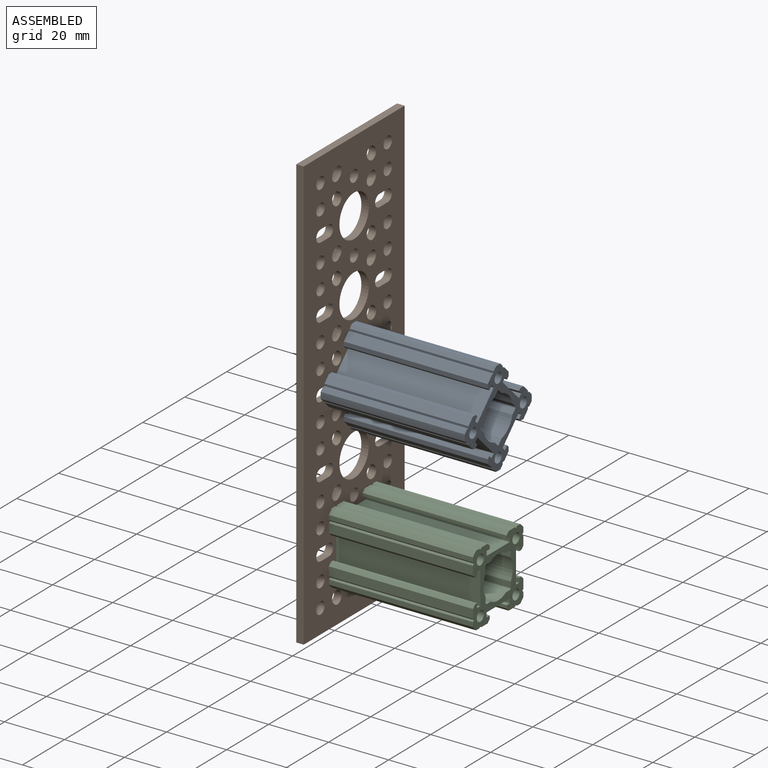
[diagram: assembled view]
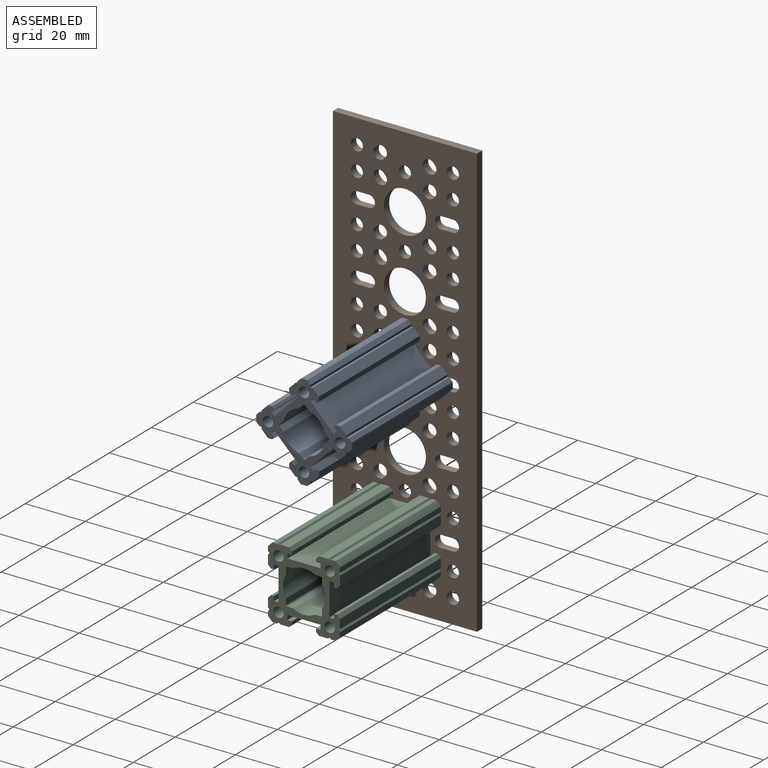
[diagram: assembled view, second angle]
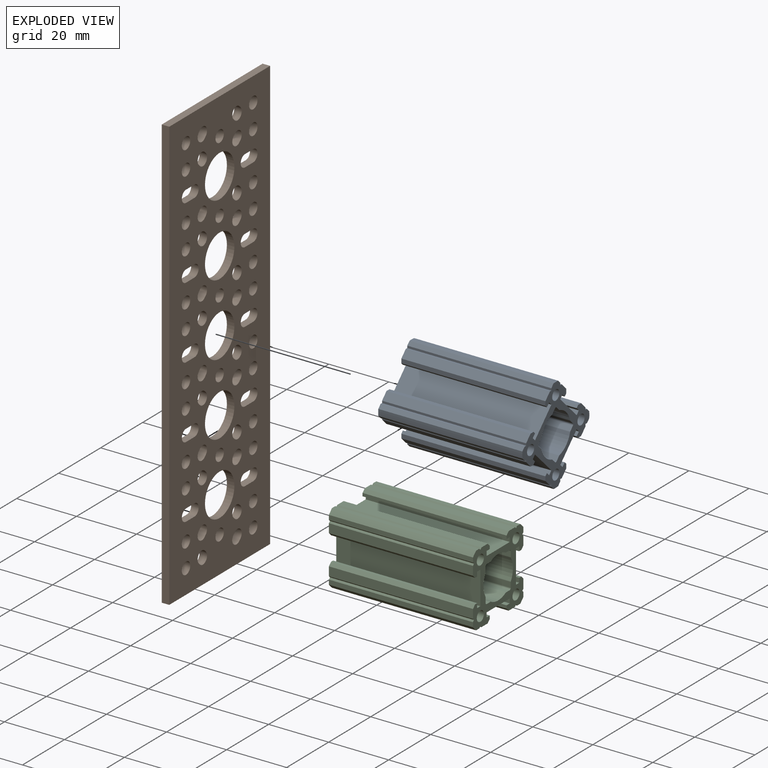
[diagram: exploded view]
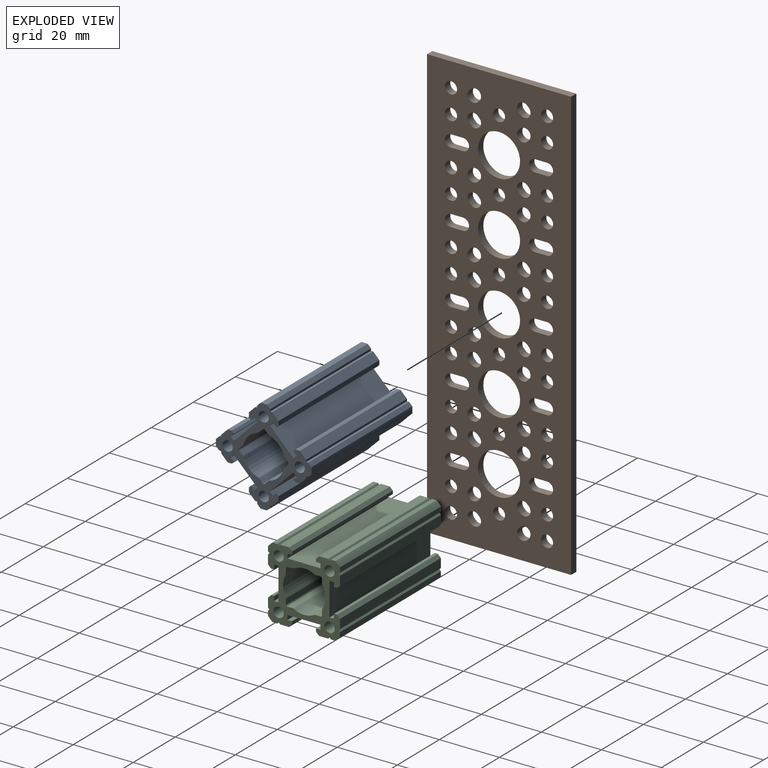
[diagram: exploded view, second angle]
ASSEMBLY  parts=3 mates=3
PART A: 102 faces, bbox 48x24x24 mm
  f0: plane 48x1.5mm, normal (0,0,1), area 72mm2, adj f1,f99,f100,f101
  f1: plane 48x1.5mm, normal (0,1,0), area 72mm2, adj f0,f2,f100,f101
  f2: plane 48x11mm, normal (0,0,-1), area 528mm2, adj f1,f3,f100,f101
  f3: plane 48x1.5mm, normal (0,-1,0), area 72mm2, adj f2,f4,f100,f101
  f4: plane 48x1.5mm, normal (0,0,1), area 72mm2, adj f3,f5,f100,f101
  f5: plane 48x1mm, normal (0,-1,0), area 48mm2, adj f4,f6,f100,f101
  f6: plane 48x1mm, normal (0,-0.71,-0.71), area 67.9mm2, adj f5,f7,f100,f101
  f7: plane 48x2.99mm, normal (0,0,-1), area 143.3mm2, adj f6,f8,f100,f101
  f8: plane 48x0.5mm, normal (0,0.71,-0.71), area 33.9mm2, adj f7,f9,f100,f101
  f9: plane 48x0.5mm, normal (0,-0.71,-0.71), area 33.9mm2, adj f8,f10,f100,f101
  f10: plane 48x1.52mm, normal (0,0,-1), area 73.1mm2, adj f9,f11,f100,f101
  f11: cylinder r=15.95mm len=48mm, axis (-1,0,0), area 101.4mm2, adj f10,f12,f100,f101
  f12: plane 48x1.52mm, normal (0,1,0), area 73.1mm2, adj f11,f13,f100,f101
  f13: plane 48x0.5mm, normal (0,0.71,0.71), area 33.9mm2, adj f12,f14,f100,f101
  f14: plane 48x0.5mm, normal (0,0.71,-0.71), area 33.9mm2, adj f13,f15,f100,f101
  f15: plane 48x2.99mm, normal (0,1,0), area 143.3mm2, adj f14,f16,f100,f101
  f16: plane 48x1mm, normal (0,0.71,0.71), area 67.9mm2, adj f15,f17,f100,f101
  f17: plane 48x1mm, normal (0,0,1), area 48mm2, adj f16,f18,f100,f101
  f18: plane 48x1.5mm, normal (0,-1,0), area 72mm2, adj f17,f19,f100,f101
  f19: plane 48x1.5mm, normal (0,0,1), area 72mm2, adj f18,f20,f100,f101
  f20: plane 48x11mm, normal (0,1,0), area 528mm2, adj f19,f21,f100,f101
  f21: plane 48x1.5mm, normal (0,0,-1), area 72mm2, adj f20,f22,f100,f101
  f22: plane 48x1.5mm, normal (0,-1,0), area 72mm2, adj f21,f23,f100,f101
  f23: plane 48x1mm, normal (0,0,-1), area 48mm2, adj f22,f24,f100,f101
  f24: plane 48x1mm, normal (0,0.71,-0.71), area 67.9mm2, adj f23,f25,f100,f101
  f25: plane 48x2.99mm, normal (0,1,0), area 143.3mm2, adj f24,f26,f100,f101
  f26: plane 48x0.5mm, normal (0,0.71,0.71), area 33.9mm2, adj f25,f27,f100,f101
  f27: plane 48x0.5mm, normal (0,0.71,-0.71), area 33.9mm2, adj f26,f28,f100,f101
  f28: plane 48x1.52mm, normal (0,1,0), area 73.1mm2, adj f27,f29,f100,f101
  f29: cylinder r=15.95mm len=48mm, axis (-1,0,0), area 101.4mm2, adj f28,f30,f100,f101
  f30: plane 48x1.52mm, normal (0,0,1), area 73.1mm2, adj f29,f31,f100,f101
  f31: plane 48x0.5mm, normal (0,-0.71,0.71), area 33.9mm2, adj f30,f32,f100,f101
  f32: plane 48x0.5mm, normal (0,0.71,0.71), area 33.9mm2, adj f31,f33,f100,f101
  f33: plane 48x2.99mm, normal (0,0,1), area 143.3mm2, adj f32,f34,f100,f101
  f34: plane 48x1mm, normal (0,-0.71,0.71), area 67.9mm2, adj f33,f35,f100,f101
  f35: plane 48x1mm, normal (0,-1,0), area 48mm2, adj f34,f36,f100,f101
  f36: plane 48x1.5mm, normal (0,0,-1), area 72mm2, adj f35,f37,f100,f101
  f37: plane 48x1.5mm, normal (0,-1,0), area 72mm2, adj f36,f38,f100,f101
  f38: plane 48x11mm, normal (0,0,1), area 528mm2, adj f37,f39,f100,f101
  f39: plane 48x1.5mm, normal (0,1,0), area 72mm2, adj f38,f40,f100,f101
  f40: plane 48x1.5mm, normal (0,0,-1), area 72mm2, adj f39,f41,f100,f101
  f41: plane 48x1mm, normal (0,1,0), area 48mm2, adj f40,f42,f100,f101
  f42: plane 48x1mm, normal (0,0.71,0.71), area 67.9mm2, adj f41,f43,f100,f101
  f43: plane 48x2.99mm, normal (0,0,1), area 143.3mm2, adj f42,f44,f100,f101
  f44: plane 48x0.5mm, normal (0,-0.71,0.71), area 33.9mm2, adj f43,f45,f100,f101
  f45: plane 48x0.5mm, normal (0,0.71,0.71), area 33.9mm2, adj f44,f46,f100,f101
  f46: plane 48x1.52mm, normal (0,0,1), area 73.1mm2, adj f45,f47,f100,f101
  f47: cylinder r=15.95mm len=48mm, axis (-1,0,0), area 101.4mm2, adj f46,f48,f100,f101
  f48: plane 48x1.52mm, normal (0,-1,0), area 73.1mm2, adj f47,f49,f100,f101
  f49: plane 48x0.5mm, normal (0,-0.71,-0.71), area 33.9mm2, adj f48,f50,f100,f101
  f50: plane 48x0.5mm, normal (0,-0.71,0.71), area 33.9mm2, adj f49,f51,f100,f101
  f51: plane 48x2.99mm, normal (0,-1,0), area 143.3mm2, adj f50,f52,f100,f101
  f52: plane 48x1mm, normal (0,-0.71,-0.71), area 67.9mm2, adj f51,f53,f100,f101
  f53: plane 48x1mm, normal (0,0,-1), area 48mm2, adj f52,f54,f100,f101
  f54: plane 48x1.5mm, normal (0,1,0), area 72mm2, adj f53,f55,f100,f101
  f55: plane 48x1.5mm, normal (0,0,-1), area 72mm2, adj f54,f56,f100,f101
  f56: plane 48x11mm, normal (0,-1,0), area 528mm2, adj f55,f57,f100,f101
  f57: plane 48x1.5mm, normal (0,0,1), area 72mm2, adj f56,f58,f100,f101
  f58: plane 48x1.5mm, normal (0,1,0), area 72mm2, adj f57,f59,f100,f101
  f59: plane 48x1mm, normal (0,0,1), area 48mm2, adj f58,f60,f100,f101
  f60: plane 48x1mm, normal (0,-0.71,0.71), area 67.9mm2, adj f59,f61,f100,f101
  f61: plane 48x2.99mm, normal (0,-1,0), area 143.3mm2, adj f60,f62,f100,f101
  f62: plane 48x0.5mm, normal (0,-0.71,-0.71), area 33.9mm2, adj f61,f63,f100,f101
  f63: plane 48x0.5mm, normal (0,-0.71,0.71), area 33.9mm2, adj f62,f64,f100,f101
  f64: plane 48x1.52mm, normal (0,-1,0), area 73.1mm2, adj f63,f65,f100,f101
  f65: cylinder r=15.95mm len=48mm, axis (-1,0,0), area 101.4mm2, adj f64,f66,f100,f101
  f66: plane 48x1.52mm, normal (0,0,-1), area 73.1mm2, adj f65,f67,f100,f101
  f67: plane 48x0.5mm, normal (0,0.71,-0.71), area 33.9mm2, adj f66,f68,f100,f101
  f68: plane 48x0.5mm, normal (0,-0.71,-0.71), area 33.9mm2, adj f67,f69,f100,f101
  f69: plane 48x2.99mm, normal (0,0,-1), area 143.3mm2, adj f68,f70,f100,f101
  f70: plane 48x1mm, normal (0,0.71,-0.71), area 67.9mm2, adj f69,f99,f100,f101
  f71: plane 48x1.74mm, normal (0,0,-1), area 83.4mm2, adj f72,f94,f100,f101
  f72: cylinder r=0.5mm len=48mm, axis (-1,0,0), area 37.7mm2, adj f71,f73,f100,f101
  f73: plane 48x1.74mm, normal (0,-1,0), area 83.4mm2, adj f72,f74,f100,f101
  f74: cylinder r=0.5mm len=48mm, axis (-1,0,0), area 12.6mm2, adj f73,f75,f100,f101
  f75: cylinder r=7.01mm len=48mm, axis (-1,0,0), area 353.1mm2, adj f74,f76,f100,f101
  f76: cylinder r=0.5mm len=48mm, axis (-1,0,0), area 12.6mm2, adj f75,f77,f100,f101
  f77: plane 48x1.74mm, normal (0,-1,0), area 83.4mm2, adj f76,f78,f100,f101
  f78: cylinder r=0.5mm len=48mm, axis (-1,0,0), area 37.7mm2, adj f77,f79,f100,f101
  f79: plane 48x1.74mm, normal (0,0,1), area 83.4mm2, adj f78,f80,f100,f101
  f80: cylinder r=0.5mm len=48mm, axis (-1,0,0), area 12.6mm2, adj f79,f81,f100,f101
  f81: cylinder r=7.01mm len=48mm, axis (-1,0,0), area 353.1mm2, adj f80,f82,f100,f101
  f82: cylinder r=0.5mm len=48mm, axis (-1,0,0), area 12.6mm2, adj f81,f83,f100,f101
  f83: plane 48x1.74mm, normal (0,0,1), area 83.4mm2, adj f82,f84,f100,f101
  f84: cylinder r=0.5mm len=48mm, axis (-1,0,0), area 37.7mm2, adj f83,f85,f100,f101
  f85: plane 48x1.74mm, normal (0,1,0), area 83.4mm2, adj f84,f86,f100,f101
  f86: cylinder r=0.5mm len=48mm, axis (-1,0,0), area 12.6mm2, adj f85,f87,f100,f101
  f87: cylinder r=7.01mm len=48mm, axis (-1,0,0), area 353.1mm2, adj f86,f88,f100,f101
  f88: cylinder r=0.5mm len=48mm, axis (-1,0,0), area 12.6mm2, adj f87,f89,f100,f101
  f89: plane 48x1.74mm, normal (0,1,0), area 83.4mm2, adj f88,f90,f100,f101
  f90: cylinder r=0.5mm len=48mm, axis (-1,0,0), area 37.7mm2, adj f89,f91,f100,f101
  f91: plane 48x1.74mm, normal (0,0,-1), area 83.4mm2, adj f90,f92,f100,f101
  f92: cylinder r=0.5mm len=48mm, axis (-1,0,0), area 12.6mm2, adj f91,f93,f100,f101
  f93: cylinder r=7.01mm len=48mm, axis (-1,0,0), area 353.1mm2, adj f92,f94,f100,f101
  f94: cylinder r=0.5mm len=48mm, axis (-1,0,0), area 12.6mm2, adj f71,f93,f100,f101
  f95: cylinder r=1.7mm len=48mm, axis (-1,0,0), area 512.7mm2, adj f100,f101
  f96: cylinder r=1.7mm len=48mm, axis (-1,0,0), area 512.7mm2, adj f100,f101
  f97: cylinder r=1.7mm len=48mm, axis (-1,0,0), area 512.7mm2, adj f100,f101
  f98: cylinder r=1.7mm len=48mm, axis (-1,0,0), area 512.7mm2, adj f100,f101
  f99: plane 48x1mm, normal (0,1,0), area 48mm2, adj f0,f70,f100,f101
  f100: plane 24x24mm, normal (1,0,0), area 235.8mm2, adj f0,f1,f2,f3,f4,f5,f6,f7
  f101: plane 24x24mm, normal (-1,0,0), area 235.8mm2, adj f0,f1,f2,f3,f4,f5,f6,f7
PART B: 177 faces, bbox 2.5x144x48 mm
  f0: cylinder r=2mm len=3.41mm, axis (-1,0,0), area 15.7mm2, adj f89,f90,f175,f176
  f1: cylinder r=2mm len=3.41mm, axis (-1,0,0), area 15.7mm2, adj f89,f90,f167,f168
  f2: cylinder r=2mm len=3.41mm, axis (-1,0,0), area 15.7mm2, adj f89,f90,f165,f166
  f3: cylinder r=2mm len=3.41mm, axis (-1,0,0), area 15.7mm2, adj f89,f90,f157,f158
  f4: cylinder r=2mm len=3.41mm, axis (-1,0,0), area 15.7mm2, adj f89,f90,f155,f156
  f5: cylinder r=2mm len=3.41mm, axis (-1,0,0), area 15.7mm2, adj f89,f90,f147,f148
  f6: cylinder r=2mm len=3.41mm, axis (-1,0,0), area 15.7mm2, adj f89,f90,f145,f146
  f7: cylinder r=2mm len=3.41mm, axis (-1,0,0), area 15.7mm2, adj f89,f90,f137,f138
  f8: cylinder r=2mm len=3.41mm, axis (-1,0,0), area 15.7mm2, adj f89,f90,f135,f136
  f9: cylinder r=2mm len=3.41mm, axis (-1,0,0), area 15.7mm2, adj f89,f90,f127,f128
  f10: cylinder r=2mm len=3.41mm, axis (-1,0,0), area 15.7mm2, adj f89,f90,f125,f126
  f11: cylinder r=2mm len=3.41mm, axis (-1,0,0), area 15.7mm2, adj f89,f90,f117,f118
  f12: cylinder r=2mm len=4mm, axis (-1,0,0), area 15.7mm2, adj f89,f90,f115,f116
  f13: cylinder r=2mm len=4mm, axis (-1,0,0), area 15.7mm2, adj f89,f90,f110,f111
  f14: cylinder r=2mm len=4mm, axis (-1,0,0), area 15.7mm2, adj f89,f90,f105,f106
  f15: cylinder r=2mm len=4mm, axis (-1,0,0), area 15.7mm2, adj f89,f90,f100,f101
  f16: cylinder r=2mm len=4mm, axis (-1,0,0), area 15.7mm2, adj f89,f90,f95,f96
  f17: cylinder r=2mm len=4mm, axis (-1,0,0), area 31.4mm2, adj f89,f90
  f18: cylinder r=2mm len=4mm, axis (-1,0,0), area 31.4mm2, adj f89,f90
  f19: cylinder r=2mm len=4mm, axis (-1,0,0), area 31.4mm2, adj f89,f90
  f20: cylinder r=2mm len=4mm, axis (-1,0,0), area 31.4mm2, adj f89,f90
  f21: cylinder r=2mm len=4mm, axis (-1,0,0), area 31.4mm2, adj f89,f90
  f22: cylinder r=2mm len=4mm, axis (-1,0,0), area 31.4mm2, adj f89,f90
  f23: cylinder r=2mm len=4mm, axis (-1,0,0), area 31.4mm2, adj f89,f90
  f24: cylinder r=2mm len=4mm, axis (-1,0,0), area 31.4mm2, adj f89,f90
  f25: cylinder r=2mm len=4mm, axis (-1,0,0), area 31.4mm2, adj f89,f90
  f26: cylinder r=2mm len=4mm, axis (-1,0,0), area 31.4mm2, adj f89,f90
  f27: cylinder r=2mm len=4mm, axis (-1,0,0), area 31.4mm2, adj f89,f90
  f28: cylinder r=2mm len=4mm, axis (-1,0,0), area 31.4mm2, adj f89,f90
  f29: cylinder r=2mm len=4mm, axis (-1,0,0), area 31.4mm2, adj f89,f90
  f30: cylinder r=2mm len=4mm, axis (-1,0,0), area 31.4mm2, adj f89,f90
  f31: cylinder r=2mm len=4mm, axis (-1,0,0), area 31.4mm2, adj f89,f90
  f32: cylinder r=2mm len=4mm, axis (-1,0,0), area 31.4mm2, adj f89,f90
  f33: cylinder r=2mm len=4mm, axis (-1,0,0), area 31.4mm2, adj f89,f90
  f34: cylinder r=2mm len=4mm, axis (-1,0,0), area 31.4mm2, adj f89,f90
  f35: cylinder r=2mm len=4mm, axis (-1,0,0), area 31.4mm2, adj f89,f90
  f36: cylinder r=2mm len=4mm, axis (-1,0,0), area 31.4mm2, adj f89,f90
  f37: cylinder r=2mm len=4mm, axis (-1,0,0), area 31.4mm2, adj f89,f90
  f38: cylinder r=2mm len=4mm, axis (-1,0,0), area 31.4mm2, adj f89,f90
  f39: cylinder r=2mm len=4mm, axis (-1,0,0), area 31.4mm2, adj f89,f90
  f40: cylinder r=2mm len=4mm, axis (-1,0,0), area 31.4mm2, adj f89,f90
  f41: cylinder r=2mm len=4mm, axis (-1,0,0), area 31.4mm2, adj f89,f90
  f42: cylinder r=2mm len=4mm, axis (-1,0,0), area 31.4mm2, adj f89,f90
  f43: cylinder r=2mm len=4mm, axis (-1,0,0), area 31.4mm2, adj f89,f90
  f44: cylinder r=2mm len=4mm, axis (-1,0,0), area 31.4mm2, adj f89,f90
  f45: cylinder r=2mm len=4mm, axis (-1,0,0), area 31.4mm2, adj f89,f90
  f46: cylinder r=2mm len=4mm, axis (-1,0,0), area 31.4mm2, adj f89,f90
  f47: cylinder r=7mm len=14mm, axis (-1,0,0), area 110mm2, adj f89,f90
  f48: cylinder r=7mm len=14mm, axis (-1,0,0), area 110mm2, adj f89,f90
  f49: cylinder r=7mm len=14mm, axis (-1,0,0), area 110mm2, adj f89,f90
  f50: cylinder r=7mm len=14mm, axis (-1,0,0), area 110mm2, adj f89,f90
  f51: cylinder r=7mm len=14mm, axis (-1,0,0), area 110mm2, adj f89,f90
  f52: cylinder r=2mm len=4mm, axis (-1,0,0), area 15.7mm2, adj f89,f90,f93,f94
  f53: cylinder r=2mm len=4mm, axis (-1,0,0), area 15.7mm2, adj f89,f90,f98,f99
  f54: cylinder r=2mm len=4mm, axis (-1,0,0), area 15.7mm2, adj f89,f90,f103,f104
  f55: cylinder r=2mm len=4mm, axis (-1,0,0), area 15.7mm2, adj f89,f90,f108,f109
  f56: cylinder r=2mm len=4mm, axis (-1,0,0), area 15.7mm2, adj f89,f90,f113,f114
  f57: cylinder r=2mm len=3.41mm, axis (-1,0,0), area 15.7mm2, adj f89,f90,f120,f121
  f58: cylinder r=2mm len=3.41mm, axis (-1,0,0), area 15.7mm2, adj f89,f90,f123,f124
  f59: cylinder r=2mm len=3.41mm, axis (-1,0,0), area 15.7mm2, adj f89,f90,f130,f131
  f60: cylinder r=2mm len=3.41mm, axis (-1,0,0), area 15.7mm2, adj f89,f90,f133,f134
  f61: cylinder r=2mm len=3.41mm, axis (-1,0,0), area 15.7mm2, adj f89,f90,f140,f141
  f62: cylinder r=2mm len=3.41mm, axis (-1,0,0), area 15.7mm2, adj f89,f90,f143,f144
  f63: cylinder r=2mm len=3.41mm, axis (-1,0,0), area 15.7mm2, adj f89,f90,f150,f151
  f64: cylinder r=2mm len=3.41mm, axis (-1,0,0), area 15.7mm2, adj f89,f90,f153,f154
  f65: cylinder r=2mm len=3.41mm, axis (-1,0,0), area 15.7mm2, adj f89,f90,f160,f161
  f66: cylinder r=2mm len=3.41mm, axis (-1,0,0), area 15.7mm2, adj f89,f90,f163,f164
  f67: cylinder r=2mm len=3.41mm, axis (-1,0,0), area 15.7mm2, adj f89,f90,f170,f171
  f68: cylinder r=2mm len=3.41mm, axis (-1,0,0), area 15.7mm2, adj f89,f90,f173,f174
  f69: plane 144x2.5mm, normal (0,0,1), area 360mm2, adj f70,f71,f89,f90
  f70: plane 48x2.5mm, normal (0,1,0), area 120mm2, adj f69,f89,f90,f91
  f71: plane 48x2.5mm, normal (0,-1,0), area 120mm2, adj f69,f89,f90,f91
  f72: cylinder r=2mm len=3.41mm, axis (-1,0,0), area 15.7mm2, adj f89,f90,f175,f176
  f73: cylinder r=2mm len=3.41mm, axis (-1,0,0), area 15.7mm2, adj f89,f90,f167,f168
  f74: cylinder r=2mm len=3.41mm, axis (-1,0,0), area 15.7mm2, adj f89,f90,f165,f166
  f75: cylinder r=2mm len=3.41mm, axis (-1,0,0), area 15.7mm2, adj f89,f90,f157,f158
  f76: cylinder r=2mm len=3.41mm, axis (-1,0,0), area 15.7mm2, adj f89,f90,f155,f156
  f77: cylinder r=2mm len=3.41mm, axis (-1,0,0), area 15.7mm2, adj f89,f90,f147,f148
  f78: cylinder r=2mm len=3.41mm, axis (-1,0,0), area 15.7mm2, adj f89,f90,f145,f146
  f79: cylinder r=2mm len=3.41mm, axis (-1,0,0), area 15.7mm2, adj f89,f90,f137,f138
  f80: cylinder r=2mm len=3.41mm, axis (-1,0,0), area 15.7mm2, adj f89,f90,f135,f136
  f81: cylinder r=2mm len=3.41mm, axis (-1,0,0), area 15.7mm2, adj f89,f90,f127,f128
  f82: cylinder r=2mm len=3.41mm, axis (-1,0,0), area 15.7mm2, adj f89,f90,f125,f126
  f83: cylinder r=2mm len=3.41mm, axis (-1,0,0), area 15.7mm2, adj f89,f90,f117,f118
  f84: cylinder r=2mm len=4mm, axis (-1,0,0), area 15.7mm2, adj f89,f90,f115,f116
  f85: cylinder r=2mm len=4mm, axis (-1,0,0), area 15.7mm2, adj f89,f90,f110,f111
  f86: cylinder r=2mm len=4mm, axis (-1,0,0), area 15.7mm2, adj f89,f90,f105,f106
  f87: cylinder r=2mm len=4mm, axis (-1,0,0), area 15.7mm2, adj f89,f90,f100,f101
  f88: cylinder r=2mm len=4mm, axis (-1,0,0), area 15.7mm2, adj f89,f90,f95,f96
  f89: plane 144x48mm, normal (1,0,0), area 5112.2mm2, adj f0,f1,f2,f3,f4,f5,f6,f7
  f90: plane 144x48mm, normal (-1,0,0), area 5112.2mm2, adj f0,f1,f2,f3,f4,f5,f6,f7
  f91: plane 144x2.5mm, normal (0,0,-1), area 360mm2, adj f70,f71,f89,f90
  f92: cylinder r=2mm len=4mm, axis (-1,0,0), area 15.7mm2, adj f89,f90,f93,f94
  f93: plane 4x2.5mm, normal (0,1,0), area 10mm2, adj f52,f89,f90,f92
  f94: plane 4x2.5mm, normal (0,-1,0), area 10mm2, adj f52,f89,f90,f92
  f95: plane 4x2.5mm, normal (0,-1,0), area 10mm2, adj f16,f88,f89,f90
  f96: plane 4x2.5mm, normal (0,1,0), area 10mm2, adj f16,f88,f89,f90
  f97: cylinder r=2mm len=4mm, axis (-1,0,0), area 15.7mm2, adj f89,f90,f98,f99
  f98: plane 4x2.5mm, normal (0,1,0), area 10mm2, adj f53,f89,f90,f97
  f99: plane 4x2.5mm, normal (0,-1,0), area 10mm2, adj f53,f89,f90,f97
  f100: plane 4x2.5mm, normal (0,-1,0), area 10mm2, adj f15,f87,f89,f90
  f101: plane 4x2.5mm, normal (0,1,0), area 10mm2, adj f15,f87,f89,f90
  f102: cylinder r=2mm len=4mm, axis (-1,0,0), area 15.7mm2, adj f89,f90,f103,f104
  f103: plane 4x2.5mm, normal (0,1,0), area 10mm2, adj f54,f89,f90,f102
  f104: plane 4x2.5mm, normal (0,-1,0), area 10mm2, adj f54,f89,f90,f102
  f105: plane 4x2.5mm, normal (0,-1,0), area 10mm2, adj f14,f86,f89,f90
  f106: plane 4x2.5mm, normal (0,1,0), area 10mm2, adj f14,f86,f89,f90
  f107: cylinder r=2mm len=4mm, axis (-1,0,0), area 15.7mm2, adj f89,f90,f108,f109
  f108: plane 4x2.5mm, normal (0,1,0), area 10mm2, adj f55,f89,f90,f107
  f109: plane 4x2.5mm, normal (0,-1,0), area 10mm2, adj f55,f89,f90,f107
  f110: plane 4x2.5mm, normal (0,-1,0), area 10mm2, adj f13,f85,f89,f90
  f111: plane 4x2.5mm, normal (0,1,0), area 10mm2, adj f13,f85,f89,f90
  f112: cylinder r=2mm len=4mm, axis (-1,0,0), area 15.7mm2, adj f89,f90,f113,f114
  f113: plane 4x2.5mm, normal (0,1,0), area 10mm2, adj f56,f89,f90,f112
  f114: plane 4x2.5mm, normal (0,-1,0), area 10mm2, adj f56,f89,f90,f112
  f115: plane 4x2.5mm, normal (0,-1,0), area 10mm2, adj f12,f84,f89,f90
  f116: plane 4x2.5mm, normal (0,1,0), area 10mm2, adj f12,f84,f89,f90
  f117: plane 2.5x0.49mm, normal (0,-0.71,0.71), area 1.7mm2, adj f11,f83,f89,f90
  f118: plane 2.5x0.49mm, normal (0,0.71,-0.71), area 1.7mm2, adj f11,f83,f89,f90
  f119: cylinder r=2mm len=3.41mm, axis (-1,0,0), area 15.7mm2, adj f89,f90,f120,f121
  f120: plane 2.5x0.49mm, normal (0,0.71,0.71), area 1.7mm2, adj f57,f89,f90,f119
  f121: plane 2.5x0.49mm, normal (0,-0.71,-0.71), area 1.7mm2, adj f57,f89,f90,f119
  f122: cylinder r=2mm len=3.41mm, axis (-1,0,0), area 15.7mm2, adj f89,f90,f123,f124
  f123: plane 2.5x0.49mm, normal (0,0.71,-0.71), area 1.7mm2, adj f58,f89,f90,f122
  f124: plane 2.5x0.49mm, normal (0,-0.71,0.71), area 1.7mm2, adj f58,f89,f90,f122
  f125: plane 2.5x0.49mm, normal (0,-0.71,-0.71), area 1.7mm2, adj f10,f82,f89,f90
  f126: plane 2.5x0.49mm, normal (0,0.71,0.71), area 1.7mm2, adj f10,f82,f89,f90
  f127: plane 2.5x0.49mm, normal (0,-0.71,0.71), area 1.7mm2, adj f9,f81,f89,f90
  f128: plane 2.5x0.49mm, normal (0,0.71,-0.71), area 1.7mm2, adj f9,f81,f89,f90
  f129: cylinder r=2mm len=3.41mm, axis (-1,0,0), area 15.7mm2, adj f89,f90,f130,f131
  f130: plane 2.5x0.49mm, normal (0,0.71,0.71), area 1.7mm2, adj f59,f89,f90,f129
  f131: plane 2.5x0.49mm, normal (0,-0.71,-0.71), area 1.7mm2, adj f59,f89,f90,f129
  f132: cylinder r=2mm len=3.41mm, axis (-1,0,0), area 15.7mm2, adj f89,f90,f133,f134
  f133: plane 2.5x0.49mm, normal (0,0.71,-0.71), area 1.7mm2, adj f60,f89,f90,f132
  f134: plane 2.5x0.49mm, normal (0,-0.71,0.71), area 1.7mm2, adj f60,f89,f90,f132
  f135: plane 2.5x0.49mm, normal (0,-0.71,-0.71), area 1.7mm2, adj f8,f80,f89,f90
  f136: plane 2.5x0.49mm, normal (0,0.71,0.71), area 1.7mm2, adj f8,f80,f89,f90
  f137: plane 2.5x0.49mm, normal (0,-0.71,0.71), area 1.7mm2, adj f7,f79,f89,f90
  f138: plane 2.5x0.49mm, normal (0,0.71,-0.71), area 1.7mm2, adj f7,f79,f89,f90
  f139: cylinder r=2mm len=3.41mm, axis (-1,0,0), area 15.7mm2, adj f89,f90,f140,f141
  f140: plane 2.5x0.49mm, normal (0,0.71,0.71), area 1.7mm2, adj f61,f89,f90,f139
  f141: plane 2.5x0.49mm, normal (0,-0.71,-0.71), area 1.7mm2, adj f61,f89,f90,f139
  f142: cylinder r=2mm len=3.41mm, axis (-1,0,0), area 15.7mm2, adj f89,f90,f143,f144
  f143: plane 2.5x0.49mm, normal (0,0.71,-0.71), area 1.7mm2, adj f62,f89,f90,f142
  f144: plane 2.5x0.49mm, normal (0,-0.71,0.71), area 1.7mm2, adj f62,f89,f90,f142
  f145: plane 2.5x0.49mm, normal (0,-0.71,-0.71), area 1.7mm2, adj f6,f78,f89,f90
  f146: plane 2.5x0.49mm, normal (0,0.71,0.71), area 1.7mm2, adj f6,f78,f89,f90
  f147: plane 2.5x0.49mm, normal (0,-0.71,0.71), area 1.7mm2, adj f5,f77,f89,f90
  f148: plane 2.5x0.49mm, normal (0,0.71,-0.71), area 1.7mm2, adj f5,f77,f89,f90
  f149: cylinder r=2mm len=3.41mm, axis (-1,0,0), area 15.7mm2, adj f89,f90,f150,f151
  f150: plane 2.5x0.49mm, normal (0,0.71,0.71), area 1.7mm2, adj f63,f89,f90,f149
  f151: plane 2.5x0.49mm, normal (0,-0.71,-0.71), area 1.7mm2, adj f63,f89,f90,f149
  f152: cylinder r=2mm len=3.41mm, axis (-1,0,0), area 15.7mm2, adj f89,f90,f153,f154
  f153: plane 2.5x0.49mm, normal (0,0.71,-0.71), area 1.7mm2, adj f64,f89,f90,f152
  f154: plane 2.5x0.49mm, normal (0,-0.71,0.71), area 1.7mm2, adj f64,f89,f90,f152
  f155: plane 2.5x0.49mm, normal (0,-0.71,-0.71), area 1.7mm2, adj f4,f76,f89,f90
  f156: plane 2.5x0.49mm, normal (0,0.71,0.71), area 1.7mm2, adj f4,f76,f89,f90
  f157: plane 2.5x0.49mm, normal (0,-0.71,0.71), area 1.7mm2, adj f3,f75,f89,f90
  f158: plane 2.5x0.49mm, normal (0,0.71,-0.71), area 1.7mm2, adj f3,f75,f89,f90
  f159: cylinder r=2mm len=3.41mm, axis (-1,0,0), area 15.7mm2, adj f89,f90,f160,f161
  f160: plane 2.5x0.49mm, normal (0,0.71,0.71), area 1.7mm2, adj f65,f89,f90,f159
  f161: plane 2.5x0.49mm, normal (0,-0.71,-0.71), area 1.7mm2, adj f65,f89,f90,f159
  f162: cylinder r=2mm len=3.41mm, axis (-1,0,0), area 15.7mm2, adj f89,f90,f163,f164
  f163: plane 2.5x0.49mm, normal (0,0.71,-0.71), area 1.7mm2, adj f66,f89,f90,f162
  f164: plane 2.5x0.49mm, normal (0,-0.71,0.71), area 1.7mm2, adj f66,f89,f90,f162
  f165: plane 2.5x0.49mm, normal (0,-0.71,-0.71), area 1.7mm2, adj f2,f74,f89,f90
  f166: plane 2.5x0.49mm, normal (0,0.71,0.71), area 1.7mm2, adj f2,f74,f89,f90
  f167: plane 2.5x0.49mm, normal (0,-0.71,-0.71), area 1.7mm2, adj f1,f73,f89,f90
  f168: plane 2.5x0.49mm, normal (0,0.71,0.71), area 1.7mm2, adj f1,f73,f89,f90
  f169: cylinder r=2mm len=3.41mm, axis (-1,0,0), area 15.7mm2, adj f89,f90,f170,f171
  f170: plane 2.5x0.49mm, normal (0,0.71,-0.71), area 1.7mm2, adj f67,f89,f90,f169
  f171: plane 2.5x0.49mm, normal (0,-0.71,0.71), area 1.7mm2, adj f67,f89,f90,f169
  f172: cylinder r=2mm len=3.41mm, axis (-1,0,0), area 15.7mm2, adj f89,f90,f173,f174
  f173: plane 2.5x0.49mm, normal (0,0.71,0.71), area 1.7mm2, adj f68,f89,f90,f172
  f174: plane 2.5x0.49mm, normal (0,-0.71,-0.71), area 1.7mm2, adj f68,f89,f90,f172
  f175: plane 2.5x0.49mm, normal (0,-0.71,0.71), area 1.7mm2, adj f0,f72,f89,f90
  f176: plane 2.5x0.49mm, normal (0,0.71,-0.71), area 1.7mm2, adj f0,f72,f89,f90
PART C: same geometry as A
PLACE A rot(axis=(-1,0,0),45deg) t=(1.3,47.41,-16.11)mm
PLACE B rot(axis=(1,0,0),90deg) t=(22.8,25.92,-88.18)mm
PLACE C t=(1.3,47.36,-64.15)mm
MATE fastened B.f82 <-> C.f98  axis (1,0,0) through (1.3,55.91,-55.7)mm
MATE revolute A.f96 <-> B.f102  axis (-1,0,0) through (1.3,35.42,-16.18)mm
MATE revolute A.f98 <-> B.f14  axis (-1,0,0) through (1.3,59.42,-16.18)mm
